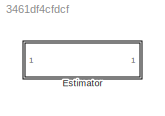
MODEL slx_3461df4cfdcf
KIND library
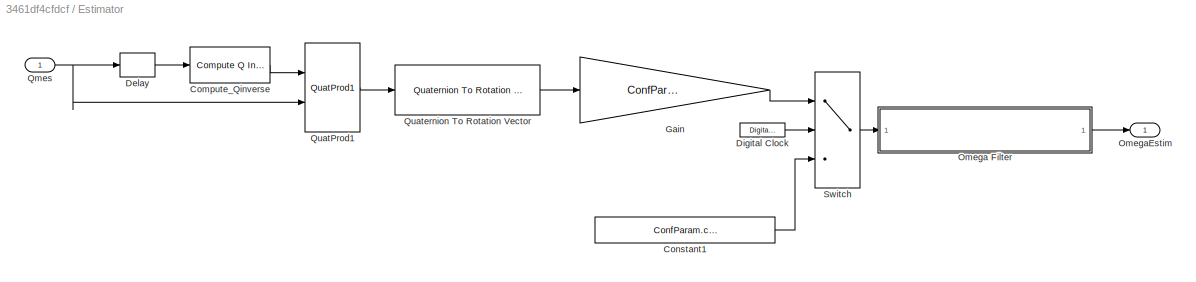
BLOCK [SubSystem] Estimator
  Ports = [1, 1]
  RequestExecContextInheritance = off
BLOCK [Reference] Estimator/Compute_Qinverse  REF=Qinverse/Compute Q Inverse
  Ports = [1, 1]
  SourceBlock = Qinverse/Compute Q Inverse
  SourceType = SubSystem
BLOCK [Constant] Estimator/Constant1
  Value = ConfParam.confEstim.InitOmegaSat
BLOCK [Delay] Estimator/Delay
  DelayLength = 1
  InitialCondition = ConfParam.confEstim.InitQsat
  InputPortMap = u0
  Ports = [1, 1]
  SampleTime = 1/ConfParam.confES.frequency
BLOCK [DigitalClock] Estimator/Digital Clock
  SampleTime = 1/ConfParam.confES.frequency
BLOCK [Gain] Estimator/Gain
  Gain = ConfParam.confES.frequency
  OutDataTypeStr = Inherit: Inherit via internal rule
  ParamDataTypeStr = Inherit: Inherit via internal rule
  SaturateOnIntegerOverflow = off
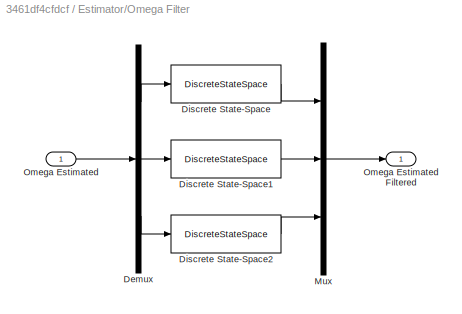
BLOCK [SubSystem] Estimator/Omega Filter
  Ports = [1, 1]
  RequestExecContextInheritance = off
BLOCK [Demux] Estimator/Omega Filter/Demux
  DisplayOption = bar
  Outputs = 3
  Ports = [1, 3]
BLOCK [DiscreteStateSpace] Estimator/Omega Filter/Discrete State-Space
  A = ConfParam.confEstim.V_A
  B = ConfParam.confEstim.V_B
  C = ConfParam.confEstim.V_C
  D = ConfParam.confEstim.V_D
  SampleTime = 1/ConfParam.confES.frequency
  X0 = [ConfParam.confEstim.InitOmegaSat(1)/ConfParam.confEstim.V_OmegaN^2; 0]
BLOCK [DiscreteStateSpace] Estimator/Omega Filter/Discrete State-Space1
  A = ConfParam.confEstim.V_A
  B = ConfParam.confEstim.V_B
  C = ConfParam.confEstim.V_C
  D = ConfParam.confEstim.V_D
  SampleTime = 1/ConfParam.confES.frequency
  X0 = [ConfParam.confEstim.InitOmegaSat(2)/ConfParam.confEstim.V_OmegaN^2; 0]
BLOCK [DiscreteStateSpace] Estimator/Omega Filter/Discrete State-Space2
  A = ConfParam.confEstim.V_A
  B = ConfParam.confEstim.V_B
  C = ConfParam.confEstim.V_C
  D = ConfParam.confEstim.V_D
  SampleTime = 1/ConfParam.confES.frequency
  X0 = [ConfParam.confEstim.InitOmegaSat(3)/ConfParam.confEstim.V_OmegaN^2; 0]
BLOCK [Mux] Estimator/Omega Filter/Mux
  DisplayOption = bar
  Inputs = 3
  Ports = [3, 1]
BLOCK [Inport] Estimator/Omega Filter/Omega Estimated
  IconDisplay = Port number
BLOCK [Outport] Estimator/Omega Filter/Omega Estimated Filtered
  IconDisplay = Port number
BLOCK [Outport] Estimator/OmegaEstim
  IconDisplay = Port number
BLOCK [Inport] Estimator/Qmes
  IconDisplay = Port number
BLOCK [Reference] Estimator/QuatProd1  REF=Qprod/QuatProd1
  Ports = [2, 1]
  SourceBlock = Qprod/QuatProd1
  SourceType = SubSystem
BLOCK [Reference] Estimator/Quaternion To Rotation Vector  REF=Quat2Rot/Quaternion To Rotation Vector
  Ports = [1, 1]
  SourceBlock = Quat2Rot/Quaternion To Rotation Vector
  SourceType = SubSystem
BLOCK [Switch] Estimator/Switch
  InputSameDT = off
  SampleTime = 1/ConfParam.confES.frequency
  SaturateOnIntegerOverflow = off
  Threshold = 1/ConfParam.confES.frequency
LINE Estimator/Compute_Qinverse:1 -> Estimator/QuatProd1:1
LINE Estimator/Constant1:1 -> Estimator/Switch:3
LINE Estimator/Delay:1 -> Estimator/Compute_Qinverse:1
LINE Estimator/Digital Clock:1 -> Estimator/Switch:2
LINE Estimator/Gain:1 -> Estimator/Switch:1
LINE Estimator/Omega Filter/Demux:1 -> Estimator/Omega Filter/Discrete State-Space:1
LINE Estimator/Omega Filter/Demux:2 -> Estimator/Omega Filter/Discrete State-Space1:1
LINE Estimator/Omega Filter/Demux:3 -> Estimator/Omega Filter/Discrete State-Space2:1
LINE Estimator/Omega Filter/Discrete State-Space1:1 -> Estimator/Omega Filter/Mux:2
LINE Estimator/Omega Filter/Discrete State-Space2:1 -> Estimator/Omega Filter/Mux:3
LINE Estimator/Omega Filter/Discrete State-Space:1 -> Estimator/Omega Filter/Mux:1
LINE Estimator/Omega Filter/Mux:1 -> Estimator/Omega Filter/Omega Estimated Filtered:1
LINE Estimator/Omega Filter/Omega Estimated:1 -> Estimator/Omega Filter/Demux:1
LINE Estimator/Omega Filter:1 -> Estimator/OmegaEstim:1
NET Estimator/Qmes:1 -> Estimator/Delay:1, Estimator/QuatProd1:2
LINE Estimator/QuatProd1:1 -> Estimator/Quaternion To Rotation Vector:1
LINE Estimator/Quaternion To Rotation Vector:1 -> Estimator/Gain:1
LINE Estimator/Switch:1 -> Estimator/Omega Filter:1
note: NET lines group one-source signal fan-out (src -> all destinations, sorted); 1:1 wires keep LINE
